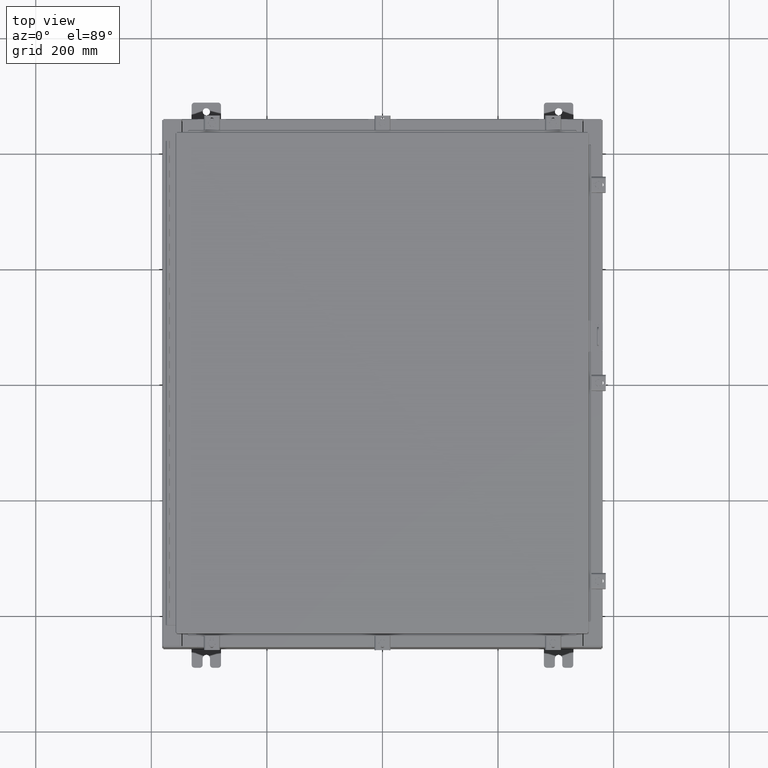
[diagram: clean part render]
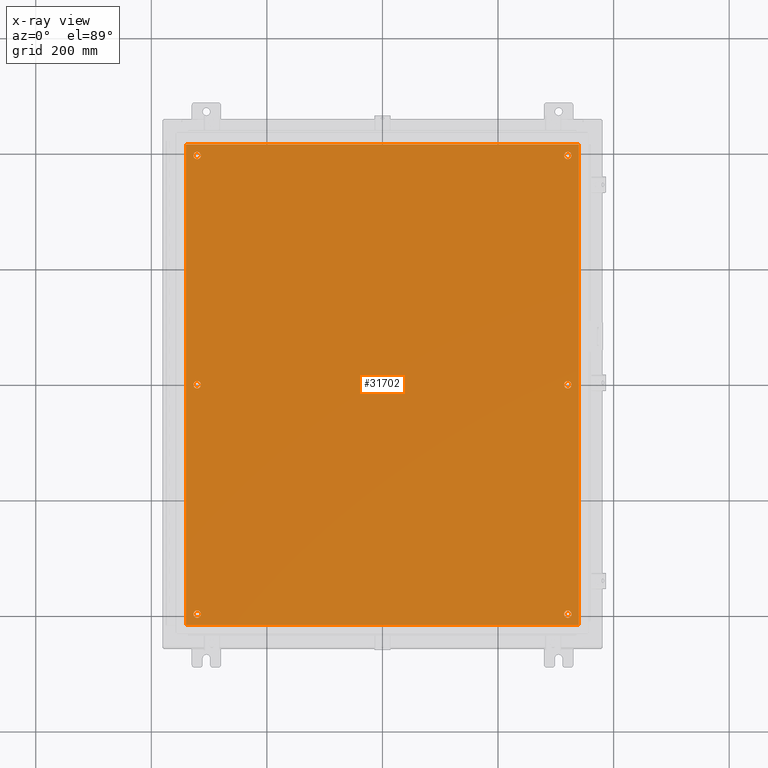
[diagram: x-ray — body ghosted, one internal face saturated and labeled with its STEP entity id]
A machine part, top view, then the same camera in x-ray: the body is ghosted and one INTERNAL B-rep face — a face not visible from any outside direction — is saturated and labeled: STEP entity #31702.
In plain terms, the highlighted planar face has unit normal (0, 0, -1).
Its self-contained STEP definition (entity closure, byte-faithful):
#45 = DIRECTION ( 'NONE',  ( -1.000000000000000000, 0.0000000000000000000, -0.0000000000000000000 ) ) ;
#168 = VECTOR ( 'NONE', #28844, 39.37007874015748100 ) ;
#479 = AXIS2_PLACEMENT_3D ( 'NONE', #11892, #35509, #15304 ) ;
#658 = VERTEX_POINT ( 'NONE', #38171 ) ;
#672 = LINE ( 'NONE', #38915, #26547 ) ;
#810 = EDGE_CURVE ( 'NONE', #25579, #11922, #42881, .T. ) ;
#1469 = ORIENTED_EDGE ( 'NONE', *, *, #17279, .F. ) ;
#1712 = CIRCLE ( 'NONE', #13984, 0.2500000000000008900 ) ;
#1787 = VERTEX_POINT ( 'NONE', #38932 ) ;
#2678 = ORIENTED_EDGE ( 'NONE', *, *, #37707, .T. ) ;
#2990 = EDGE_CURVE ( 'NONE', #6219, #21823, #30057, .T. ) ;
#3202 = CARTESIAN_POINT ( 'NONE',  ( 12.62500000000000200, 3.355087480100814800E-015, -0.1040000000000000400 ) ) ;
#3342 = EDGE_LOOP ( 'NONE', ( #30875, #17363 ) ) ;
#3627 = EDGE_CURVE ( 'NONE', #11922, #25579, #6724, .T. ) ;
#3640 = CIRCLE ( 'NONE', #29452, 0.2500000000000008900 ) ;
#4004 = CARTESIAN_POINT ( 'NONE',  ( -12.87500000000000400, 2.934704822324311800E-016, -0.1040000000000000400 ) ) ;
#4264 = FACE_BOUND ( 'NONE', #43236, .T. ) ;
#4710 = CIRCLE ( 'NONE', #479, 0.2500000000000008900 ) ;
#5720 = EDGE_CURVE ( 'NONE', #1787, #32986, #3640, .T. ) ;
#6219 = VERTEX_POINT ( 'NONE', #20482 ) ;
#6576 = DIRECTION ( 'NONE',  ( -1.000000000000000000, 0.0000000000000000000, 0.0000000000000000000 ) ) ;
#6724 = CIRCLE ( 'NONE', #8977, 0.2500000000000008900 ) ;
#6966 = CARTESIAN_POINT ( 'NONE',  ( 12.62500000000000400, 15.62500000000000400, -0.1040000000000000400 ) ) ;
#6982 = CARTESIAN_POINT ( 'NONE',  ( -12.62500000000000400, -15.62500000000000400, -0.1040000000000000400 ) ) ;
#7451 = DIRECTION ( 'NONE',  ( -0.0000000000000000000, -0.0000000000000000000, 1.000000000000000000 ) ) ;
#7527 = VERTEX_POINT ( 'NONE', #43310 ) ;
#7842 = DIRECTION ( 'NONE',  ( -0.0000000000000000000, -0.0000000000000000000, 1.000000000000000000 ) ) ;
#8010 = ORIENTED_EDGE ( 'NONE', *, *, #37016, .F. ) ;
#8014 = CIRCLE ( 'NONE', #32056, 0.2500000000000008900 ) ;
#8592 = CARTESIAN_POINT ( 'NONE',  ( -13.38300000000000300, 16.38299999999998800, -0.1040000000000063200 ) ) ;
#8977 = AXIS2_PLACEMENT_3D ( 'NONE', #12141, #35771, #15547 ) ;
#9355 = EDGE_CURVE ( 'NONE', #658, #29311, #1712, .T. ) ;
#10249 = CARTESIAN_POINT ( 'NONE',  ( -13.38300000000000300, 16.38299999999998800, -0.1040000000000063200 ) ) ;
#10281 = VERTEX_POINT ( 'NONE', #10249 ) ;
#10393 = DIRECTION ( 'NONE',  ( -1.000000000000000000, 0.0000000000000000000, 0.0000000000000000000 ) ) ;
#10413 = DIRECTION ( 'NONE',  ( -1.000000000000000000, 0.0000000000000000000, 0.0000000000000000000 ) ) ;
#10546 = CARTESIAN_POINT ( 'NONE',  ( 12.62500000000000200, 3.355087480100814800E-015, -0.1040000000000000400 ) ) ;
#11284 = EDGE_LOOP ( 'NONE', ( #18641, #24201 ) ) ;
#11892 = CARTESIAN_POINT ( 'NONE',  ( 12.62500000000000400, 15.62500000000000400, -0.1040000000000000400 ) ) ;
#11922 = VERTEX_POINT ( 'NONE', #22238 ) ;
#12052 = ORIENTED_EDGE ( 'NONE', *, *, #30796, .T. ) ;
#12066 = EDGE_CURVE ( 'NONE', #24519, #25538, #23055, .T. ) ;
#12141 = CARTESIAN_POINT ( 'NONE',  ( 12.62500000000000400, -15.62500000000000400, -0.1040000000000000400 ) ) ;
#12245 = EDGE_CURVE ( 'NONE', #22917, #7527, #33566, .T. ) ;
#12275 = CARTESIAN_POINT ( 'NONE',  ( 13.38299999999999900, 16.38300000000000300, -0.1040000000000008600 ) ) ;
#12895 = CARTESIAN_POINT ( 'NONE',  ( -12.37500000000000200, 2.628543122537475400E-016, -0.1040000000000000400 ) ) ;
#13251 = FACE_BOUND ( 'NONE', #11284, .T. ) ;
#13493 = VERTEX_POINT ( 'NONE', #18809 ) ;
#13941 = DIRECTION ( 'NONE',  ( -1.000000000000000000, 0.0000000000000000000, 0.0000000000000000000 ) ) ;
#13984 = AXIS2_PLACEMENT_3D ( 'NONE', #6982, #30645, #10413 ) ;
#14816 = CARTESIAN_POINT ( 'NONE',  ( -12.87500000000000500, 15.62500000000000400, -0.1040000000000000400 ) ) ;
#15304 = DIRECTION ( 'NONE',  ( -1.000000000000000000, 0.0000000000000000000, 0.0000000000000000000 ) ) ;
#15547 = DIRECTION ( 'NONE',  ( -1.000000000000000000, 0.0000000000000000000, 0.0000000000000000000 ) ) ;
#15929 = CARTESIAN_POINT ( 'NONE',  ( -12.87500000000000500, -15.62500000000000400, -0.1040000000000000400 ) ) ;
#16162 = CARTESIAN_POINT ( 'NONE',  ( -12.62500000000000400, 15.62500000000000400, -0.1040000000000000400 ) ) ;
#16231 = VECTOR ( 'NONE', #26714, 39.37007874015748100 ) ;
#16908 = CARTESIAN_POINT ( 'NONE',  ( 0.0000000000000000000, 0.0000000000000000000, -0.1040000000000000400 ) ) ;
#17279 = EDGE_CURVE ( 'NONE', #21823, #22756, #672, .T. ) ;
#17363 = ORIENTED_EDGE ( 'NONE', *, *, #810, .T. ) ;
#17780 = ORIENTED_EDGE ( 'NONE', *, *, #39033, .T. ) ;
#17798 = VERTEX_POINT ( 'NONE', #38573 ) ;
#18477 = AXIS2_PLACEMENT_3D ( 'NONE', #3202, #26848, #6576 ) ;
#18641 = ORIENTED_EDGE ( 'NONE', *, *, #38340, .T. ) ;
#18809 = CARTESIAN_POINT ( 'NONE',  ( 12.37500000000000400, 15.62500000000000400, -0.1040000000000000400 ) ) ;
#18823 = EDGE_LOOP ( 'NONE', ( #43585, #2678 ) ) ;
#19426 = DIRECTION ( 'NONE',  ( -0.0000000000000000000, -0.0000000000000000000, 1.000000000000000000 ) ) ;
#19462 = EDGE_LOOP ( 'NONE', ( #12052, #41680 ) ) ;
#19564 = DIRECTION ( 'NONE',  ( -1.000000000000000000, 0.0000000000000000000, 0.0000000000000000000 ) ) ;
#19712 = DIRECTION ( 'NONE',  ( -0.0000000000000000000, -0.0000000000000000000, 1.000000000000000000 ) ) ;
#19887 = CARTESIAN_POINT ( 'NONE',  ( 12.37500000000000400, -15.62500000000000400, -0.1040000000000000400 ) ) ;
#20144 = DIRECTION ( 'NONE',  ( -0.0000000000000000000, -0.0000000000000000000, 1.000000000000000000 ) ) ;
#20299 = DIRECTION ( 'NONE',  ( 0.0000000000000000000, 0.0000000000000000000, -1.000000000000000000 ) ) ;
#20482 = CARTESIAN_POINT ( 'NONE',  ( -13.38300000000000300, -16.38299999999999900, -0.1040000000000019500 ) ) ;
#21127 = VECTOR ( 'NONE', #29199, 39.37007874015748100 ) ;
#21803 = AXIS2_PLACEMENT_3D ( 'NONE', #39626, #19426, #43004 ) ;
#21823 = VERTEX_POINT ( 'NONE', #33193 ) ;
#22238 = CARTESIAN_POINT ( 'NONE',  ( 12.87500000000000500, -15.62500000000000400, -0.1040000000000000400 ) ) ;
#22247 = FACE_BOUND ( 'NONE', #3342, .T. ) ;
#22437 = CARTESIAN_POINT ( 'NONE',  ( -13.50000000000000000, -16.38299999999999900, -0.1040000000000019500 ) ) ;
#22756 = VERTEX_POINT ( 'NONE', #12275 ) ;
#22917 = VERTEX_POINT ( 'NONE', #38512 ) ;
#23055 = CIRCLE ( 'NONE', #39480, 0.2500000000000008900 ) ;
#23314 = FACE_BOUND ( 'NONE', #18823, .T. ) ;
#24201 = ORIENTED_EDGE ( 'NONE', *, *, #12245, .T. ) ;
#24519 = VERTEX_POINT ( 'NONE', #4004 ) ;
#25204 = LINE ( 'NONE', #29957, #16231 ) ;
#25538 = VERTEX_POINT ( 'NONE', #12895 ) ;
#25579 = VERTEX_POINT ( 'NONE', #19887 ) ;
#26547 = VECTOR ( 'NONE', #42593, 39.37007874015748100 ) ;
#26643 = LINE ( 'NONE', #8592, #168 ) ;
#26714 = DIRECTION ( 'NONE',  ( -1.000000000000000000, -0.0000000000000000000, -0.0000000000000000000 ) ) ;
#26848 = DIRECTION ( 'NONE',  ( -0.0000000000000000000, -0.0000000000000000000, 1.000000000000000000 ) ) ;
#27111 = CIRCLE ( 'NONE', #34560, 0.2500000000000008900 ) ;
#27363 = AXIS2_PLACEMENT_3D ( 'NONE', #10546, #34166, #13941 ) ;
#27711 = CARTESIAN_POINT ( 'NONE',  ( -12.62500000000000400, 15.62500000000000400, -0.1040000000000000400 ) ) ;
#28079 = CARTESIAN_POINT ( 'NONE',  ( -12.62500000000000200, 2.628543122537475400E-016, -0.1040000000000000400 ) ) ;
#28844 = DIRECTION ( 'NONE',  ( 0.0000000000000000000, -1.000000000000000000, 0.0000000000000000000 ) ) ;
#29199 = DIRECTION ( 'NONE',  ( 1.000000000000000000, -0.0000000000000000000, -0.0000000000000000000 ) ) ;
#29311 = VERTEX_POINT ( 'NONE', #15929 ) ;
#29452 = AXIS2_PLACEMENT_3D ( 'NONE', #27711, #7451, #31113 ) ;
#29626 = CIRCLE ( 'NONE', #42473, 0.2500000000000008900 ) ;
#29747 = EDGE_LOOP ( 'NONE', ( #34587, #8010, #39419, #1469 ) ) ;
#29957 = CARTESIAN_POINT ( 'NONE',  ( 13.50000000000000000, 16.38299999999999900, -0.1040000000000008600 ) ) ;
#30057 = LINE ( 'NONE', #22437, #21127 ) ;
#30159 = FACE_OUTER_BOUND ( 'NONE', #29747, .T. ) ;
#30633 = DIRECTION ( 'NONE',  ( -0.0000000000000000000, -0.0000000000000000000, 1.000000000000000000 ) ) ;
#30645 = DIRECTION ( 'NONE',  ( -0.0000000000000000000, -0.0000000000000000000, 1.000000000000000000 ) ) ;
#30796 = EDGE_CURVE ( 'NONE', #25538, #24519, #8014, .T. ) ;
#30875 = ORIENTED_EDGE ( 'NONE', *, *, #3627, .T. ) ;
#30987 = AXIS2_PLACEMENT_3D ( 'NONE', #16908, #20299, #45 ) ;
#31113 = DIRECTION ( 'NONE',  ( -1.000000000000000000, 0.0000000000000000000, 0.0000000000000000000 ) ) ;
#31477 = DIRECTION ( 'NONE',  ( -1.000000000000000000, 0.0000000000000000000, 0.0000000000000000000 ) ) ;
#31702 = ADVANCED_FACE ( 'NONE', ( #13251, #40194, #23314, #22247, #4264, #39103, #30159 ), #37088, .T. ) ;
#32056 = AXIS2_PLACEMENT_3D ( 'NONE', #28079, #7842, #31477 ) ;
#32419 = EDGE_CURVE ( 'NONE', #13493, #17798, #4710, .T. ) ;
#32986 = VERTEX_POINT ( 'NONE', #14816 ) ;
#33193 = CARTESIAN_POINT ( 'NONE',  ( 13.38299999999999900, -16.38300000000000300, -0.1040000000000008600 ) ) ;
#33276 = ORIENTED_EDGE ( 'NONE', *, *, #38868, .T. ) ;
#33566 = CIRCLE ( 'NONE', #27363, 0.2500000000000008900 ) ;
#33976 = EDGE_CURVE ( 'NONE', #22756, #10281, #25204, .T. ) ;
#34166 = DIRECTION ( 'NONE',  ( -0.0000000000000000000, -0.0000000000000000000, 1.000000000000000000 ) ) ;
#34243 = ORIENTED_EDGE ( 'NONE', *, *, #5720, .T. ) ;
#34560 = AXIS2_PLACEMENT_3D ( 'NONE', #40316, #20144, #43710 ) ;
#34587 = ORIENTED_EDGE ( 'NONE', *, *, #2990, .F. ) ;
#35072 = ORIENTED_EDGE ( 'NONE', *, *, #32419, .T. ) ;
#35509 = DIRECTION ( 'NONE',  ( -0.0000000000000000000, -0.0000000000000000000, 1.000000000000000000 ) ) ;
#35771 = DIRECTION ( 'NONE',  ( -0.0000000000000000000, -0.0000000000000000000, 1.000000000000000000 ) ) ;
#36845 = EDGE_LOOP ( 'NONE', ( #34243, #33276 ) ) ;
#37016 = EDGE_CURVE ( 'NONE', #10281, #6219, #26643, .T. ) ;
#37088 = PLANE ( 'NONE',  #30987 ) ;
#37149 = AXIS2_PLACEMENT_3D ( 'NONE', #6966, #30633, #10393 ) ;
#37707 = EDGE_CURVE ( 'NONE', #29311, #658, #27111, .T. ) ;
#38171 = CARTESIAN_POINT ( 'NONE',  ( -12.37500000000000400, -15.62500000000000400, -0.1040000000000000400 ) ) ;
#38340 = EDGE_CURVE ( 'NONE', #7527, #22917, #42861, .T. ) ;
#38512 = CARTESIAN_POINT ( 'NONE',  ( 12.37500000000000200, 3.385703650079498500E-015, -0.1040000000000000400 ) ) ;
#38573 = CARTESIAN_POINT ( 'NONE',  ( 12.87500000000000500, 15.62500000000000400, -0.1040000000000000400 ) ) ;
#38868 = EDGE_CURVE ( 'NONE', #32986, #1787, #29626, .T. ) ;
#38915 = CARTESIAN_POINT ( 'NONE',  ( 13.38299999999999900, -16.38300000000000300, -0.1040000000000008600 ) ) ;
#38932 = CARTESIAN_POINT ( 'NONE',  ( -12.37500000000000400, 15.62500000000000400, -0.1040000000000000400 ) ) ;
#39033 = EDGE_CURVE ( 'NONE', #17798, #13493, #40192, .T. ) ;
#39103 = FACE_BOUND ( 'NONE', #36845, .T. ) ;
#39419 = ORIENTED_EDGE ( 'NONE', *, *, #33976, .F. ) ;
#39480 = AXIS2_PLACEMENT_3D ( 'NONE', #39912, #19712, #43291 ) ;
#39626 = CARTESIAN_POINT ( 'NONE',  ( 12.62500000000000400, -15.62500000000000400, -0.1040000000000000400 ) ) ;
#39763 = DIRECTION ( 'NONE',  ( -0.0000000000000000000, -0.0000000000000000000, 1.000000000000000000 ) ) ;
#39912 = CARTESIAN_POINT ( 'NONE',  ( -12.62500000000000200, 2.628543122537475400E-016, -0.1040000000000000400 ) ) ;
#40192 = CIRCLE ( 'NONE', #37149, 0.2500000000000008900 ) ;
#40194 = FACE_BOUND ( 'NONE', #19462, .T. ) ;
#40316 = CARTESIAN_POINT ( 'NONE',  ( -12.62500000000000400, -15.62500000000000400, -0.1040000000000000400 ) ) ;
#41680 = ORIENTED_EDGE ( 'NONE', *, *, #12066, .T. ) ;
#42473 = AXIS2_PLACEMENT_3D ( 'NONE', #16162, #39763, #19564 ) ;
#42593 = DIRECTION ( 'NONE',  ( 0.0000000000000000000, 1.000000000000000000, 0.0000000000000000000 ) ) ;
#42861 = CIRCLE ( 'NONE', #18477, 0.2500000000000008900 ) ;
#42881 = CIRCLE ( 'NONE', #21803, 0.2500000000000008900 ) ;
#43004 = DIRECTION ( 'NONE',  ( -1.000000000000000000, 0.0000000000000000000, 0.0000000000000000000 ) ) ;
#43236 = EDGE_LOOP ( 'NONE', ( #17780, #35072 ) ) ;
#43291 = DIRECTION ( 'NONE',  ( -1.000000000000000000, 0.0000000000000000000, 0.0000000000000000000 ) ) ;
#43310 = CARTESIAN_POINT ( 'NONE',  ( 12.87500000000000400, 3.355087480100814800E-015, -0.1040000000000000400 ) ) ;
#43585 = ORIENTED_EDGE ( 'NONE', *, *, #9355, .T. ) ;
#43710 = DIRECTION ( 'NONE',  ( -1.000000000000000000, 0.0000000000000000000, 0.0000000000000000000 ) ) ;